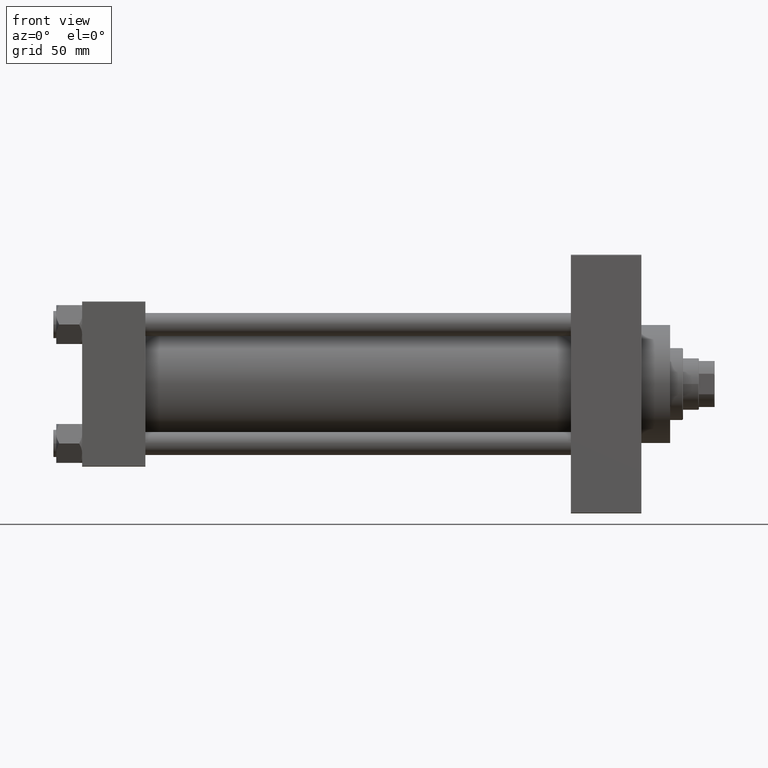
[diagram: clean part render]
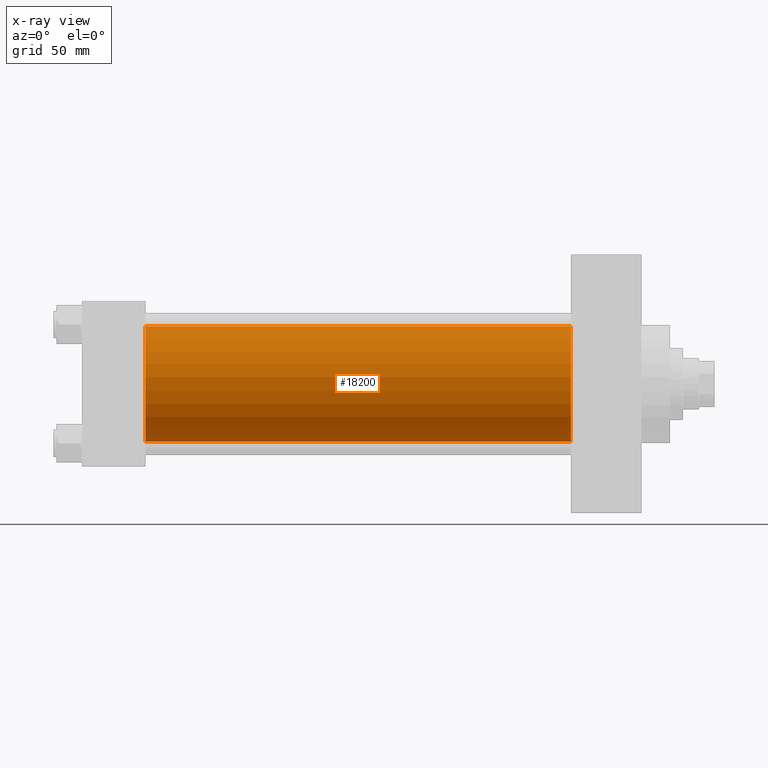
[diagram: x-ray — body ghosted, one internal face saturated and labeled with its STEP entity id]
A machine part, front view, then the same camera in x-ray: the body is ghosted and one INTERNAL B-rep face — a face not visible from any outside direction — is saturated and labeled: STEP entity #18200.
In plain terms, the highlighted cylindrical surface (partial cylindrical patch) has radius 40 mm, axis along (-1, -0, -0).
Its self-contained STEP definition (entity closure, byte-faithful):
#145 = CYLINDRICAL_SURFACE ( 'NONE', #20885, 40.00000000000000000 ) ;
#516 = EDGE_CURVE ( 'NONE', #47422, #20018, #48974, .T. ) ;
#1298 = DIRECTION ( 'NONE',  ( 0.000000000000000000, 0.000000000000000000, -1.000000000000000000 ) ) ;
#2077 = CARTESIAN_POINT ( 'NONE',  ( 339.9999999999999432, -2.602085213965210642E-15, 40.00000000000000000 ) ) ;
#2078 = EDGE_CURVE ( 'NONE', #43485, #20018, #14171, .T. ) ;
#4293 = CARTESIAN_POINT ( 'NONE',  ( 339.9999999999999432, -2.602085213965210642E-15, 0.000000000000000000 ) ) ;
#4423 = FACE_OUTER_BOUND ( 'NONE', #36902, .T. ) ;
#7940 = DIRECTION ( 'NONE',  ( -1.000000000000000000, -0.000000000000000000, -0.000000000000000000 ) ) ;
#10393 = CARTESIAN_POINT ( 'NONE',  ( 339.9999999999999432, 2.296501982624201990E-15, -40.00000000000000000 ) ) ;
#11763 = AXIS2_PLACEMENT_3D ( 'NONE', #39827, #47619, #1298 ) ;
#14171 = CIRCLE ( 'NONE', #11763, 40.00000000000000000 ) ;
#15406 = ORIENTED_EDGE ( 'NONE', *, *, #2078, .F. ) ;
#16218 = ORIENTED_EDGE ( 'NONE', *, *, #516, .T. ) ;
#16521 = DIRECTION ( 'NONE',  ( -1.000000000000000000, -0.000000000000000000, -0.000000000000000000 ) ) ;
#18200 = ADVANCED_FACE ( 'NONE', ( #4423 ), #145, .F. ) ;
#20018 = VERTEX_POINT ( 'NONE', #38516 ) ;
#20435 = ORIENTED_EDGE ( 'NONE', *, *, #44674, .F. ) ;
#20885 = AXIS2_PLACEMENT_3D ( 'NONE', #27607, #16521, #23584 ) ;
#22113 = AXIS2_PLACEMENT_3D ( 'NONE', #4293, #43057, #27232 ) ;
#23584 = DIRECTION ( 'NONE',  ( 0.000000000000000000, 0.000000000000000000, 1.000000000000000000 ) ) ;
#24927 = CARTESIAN_POINT ( 'NONE',  ( 339.9999999999999432, -2.602085213965210642E-15, 40.00000000000000000 ) ) ;
#25905 = LINE ( 'NONE', #24927, #46282 ) ;
#27232 = DIRECTION ( 'NONE',  ( 0.000000000000000000, 0.000000000000000000, -1.000000000000000000 ) ) ;
#27607 = CARTESIAN_POINT ( 'NONE',  ( 339.9999999999999432, -2.602085213965210642E-15, 0.000000000000000000 ) ) ;
#36902 = EDGE_LOOP ( 'NONE', ( #38992, #16218, #15406, #20435 ) ) ;
#37136 = VERTEX_POINT ( 'NONE', #2077 ) ;
#38516 = CARTESIAN_POINT ( 'NONE',  ( 44.00000000000000000, 2.296501982624201990E-15, -40.00000000000000000 ) ) ;
#38646 = CARTESIAN_POINT ( 'NONE',  ( 339.9999999999999432, 2.296501982624201990E-15, -40.00000000000000000 ) ) ;
#38992 = ORIENTED_EDGE ( 'NONE', *, *, #40229, .T. ) ;
#39827 = CARTESIAN_POINT ( 'NONE',  ( 44.00000000000000000, -2.602085213965210642E-15, 0.000000000000000000 ) ) ;
#40229 = EDGE_CURVE ( 'NONE', #37136, #47422, #48614, .T. ) ;
#43057 = DIRECTION ( 'NONE',  ( 1.000000000000000000, 0.000000000000000000, 0.000000000000000000 ) ) ;
#43485 = VERTEX_POINT ( 'NONE', #44090 ) ;
#44090 = CARTESIAN_POINT ( 'NONE',  ( 44.00000000000000000, -2.602085213965210642E-15, 40.00000000000000000 ) ) ;
#44674 = EDGE_CURVE ( 'NONE', #37136, #43485, #25905, .T. ) ;
#46282 = VECTOR ( 'NONE', #48306, 1000.000000000000000 ) ;
#47422 = VERTEX_POINT ( 'NONE', #10393 ) ;
#47619 = DIRECTION ( 'NONE',  ( 1.000000000000000000, 0.000000000000000000, 0.000000000000000000 ) ) ;
#47844 = VECTOR ( 'NONE', #7940, 1000.000000000000000 ) ;
#48306 = DIRECTION ( 'NONE',  ( -1.000000000000000000, -0.000000000000000000, -0.000000000000000000 ) ) ;
#48614 = CIRCLE ( 'NONE', #22113, 40.00000000000000000 ) ;
#48974 = LINE ( 'NONE', #38646, #47844 ) ;